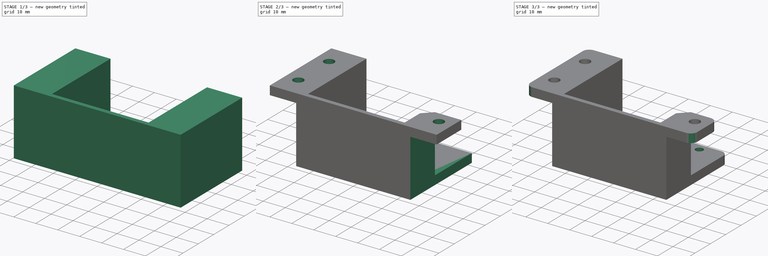
[diagram: build sequence overview — one tinted view per stage of 3, left to right]
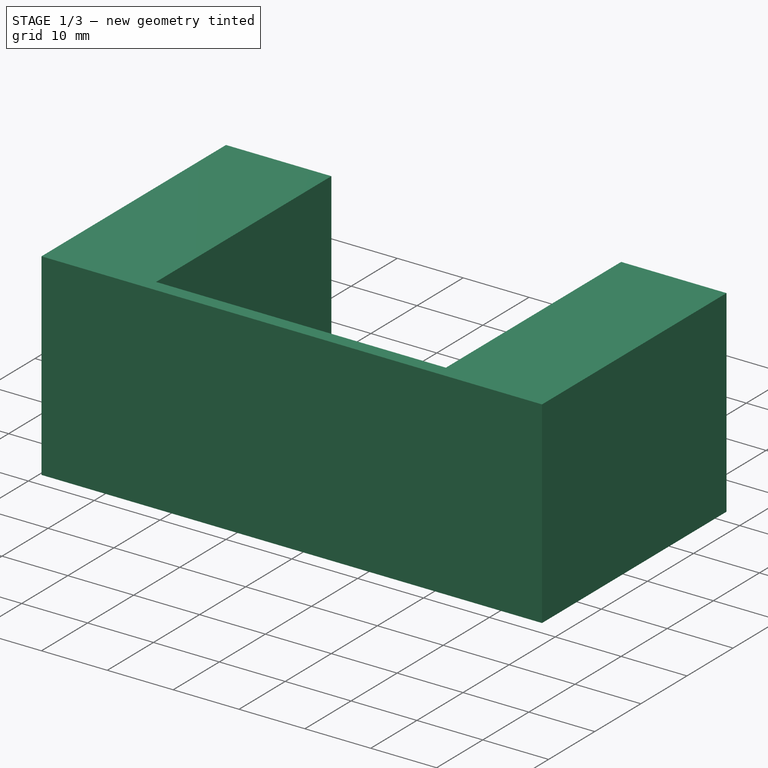
[diagram: stage 1 of 3 — iso view after this stage's code; geometry added in this stage tinted green]
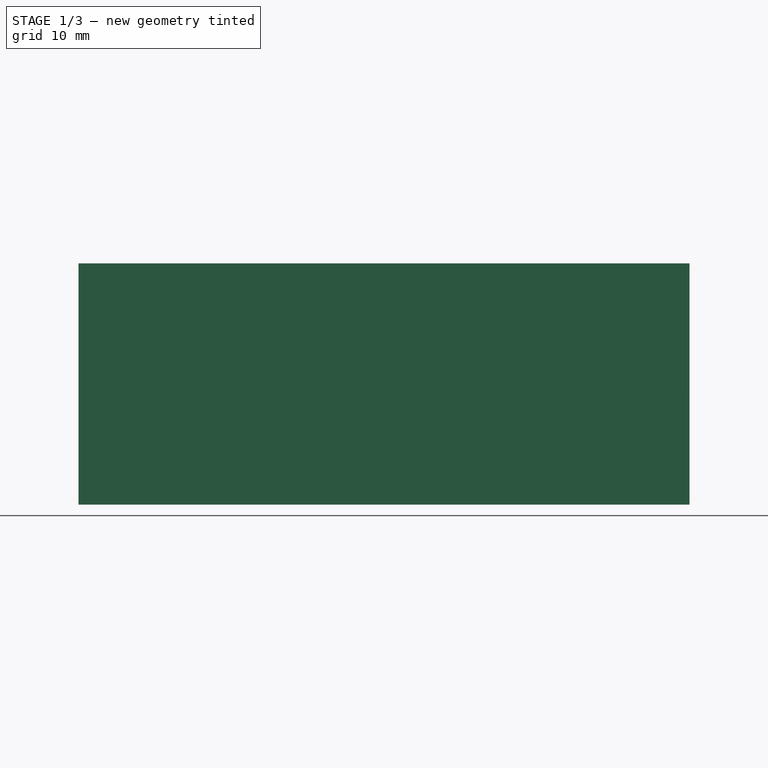
[diagram: stage 1 of 3 — front view after this stage's code; geometry added in this stage tinted green]
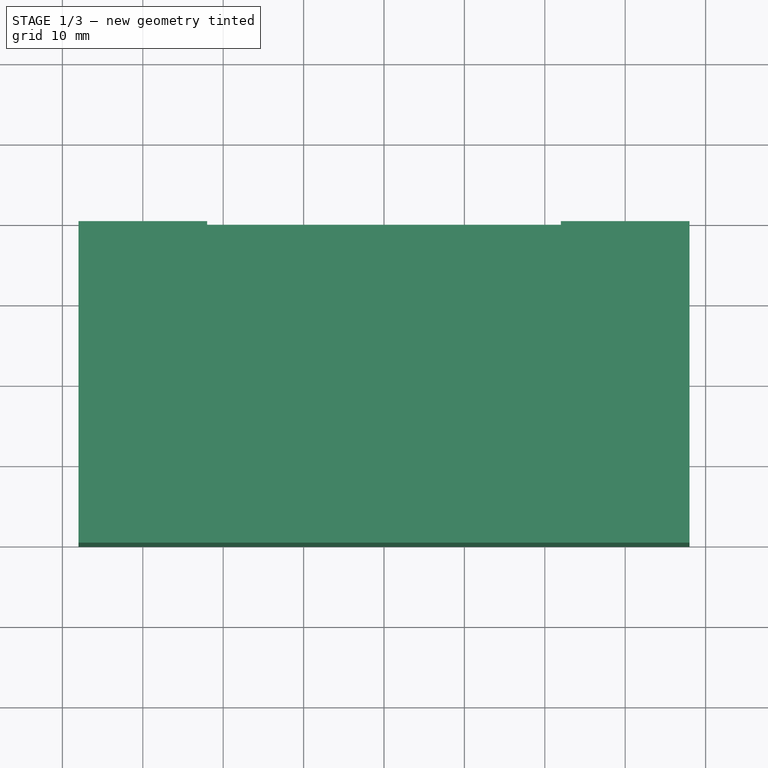
[diagram: stage 1 of 3 — top view after this stage's code; geometry added in this stage tinted green]
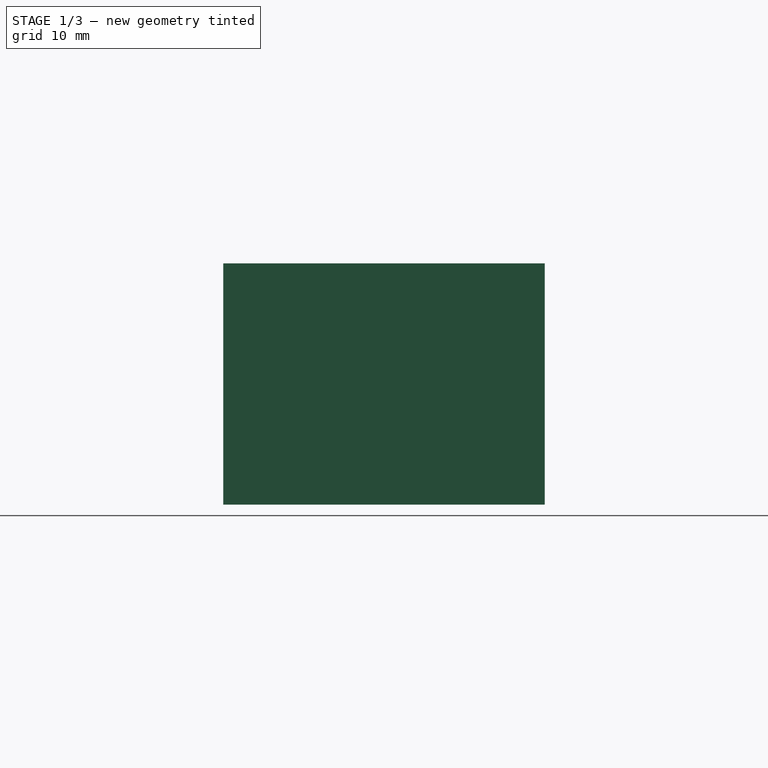
[diagram: stage 1 of 3 — right view after this stage's code; geometry added in this stage tinted green]
FCSTD DOCUMENT  (FreeCAD 0.16R6707 (Git))
Label: motor mount lead screw
License: All rights reserved
LicenseURL: http://en.wikipedia.org/wiki/All_rights_reserved
objects: Sketcher::SketchObject×6, PartDesign::Pocket×5, PartDesign::Pad×1, PartDesign::Fillet×1
note: 19 computed .brp shape members not serialized (recipe doc carries the construction recipe); baked Part::Feature solids carry a one-line shape summary decoded from their .brp

FEATURE [Sketcher::SketchObject] Sketch
  sketch-geometry (4):
    g0: LineSegment StartX=-38 StartY=40 StartZ=0 EndX=38 EndY=40 EndZ=0
    g1: LineSegment StartX=38 StartY=40 StartZ=0 EndX=38 EndY=0 EndZ=0
    g2: LineSegment StartX=38 StartY=0 StartZ=0 EndX=-38 EndY=0 EndZ=0
    g3: LineSegment StartX=-38 StartY=0 StartZ=0 EndX=-38 EndY=40 EndZ=0
  constraints (11):
    c: Coincident(g0,g1)
    c: Coincident(g1,g2)
    c: Coincident(g2,g3)
    c: Coincident(g3,g0)
    c: Horizontal(g0)
    c: Horizontal(g2)
    c: Vertical(g1)
    c: Vertical(g3)
    c: Symmetric(g0,g0,g-2)
    c: DistanceX(g0,g0) = 76
    c: DistanceY(g3,g3) = 40
FEATURE [PartDesign::Pad] Pad
  Length = 30
  Length2 = 100
  Sketch = -> Sketch
  Type = 0
FEATURE [Sketcher::SketchObject] Sketch001
  Placement = pos=(0,0,30) rot=(0,0,1;0rad)
  Support = -> Pad [Face6]
  sketch-geometry (4):
    g0: LineSegment StartX=-22 StartY=45.0787 StartZ=0 EndX=22 EndY=45.0787 EndZ=0
    g1: LineSegment StartX=22 StartY=45.0787 StartZ=0 EndX=22 EndY=2 EndZ=0
    g2: LineSegment StartX=22 StartY=2 StartZ=0 EndX=-22 EndY=2 EndZ=0
    g3: LineSegment StartX=-22 StartY=2 StartZ=0 EndX=-22 EndY=45.0787 EndZ=0
  constraints (10):
    c: Coincident(g0,g1)
    c: Coincident(g1,g2)
    c: Coincident(g2,g3)
    c: Coincident(g3,g0)
    c: Horizontal(g0)
    c: Horizontal(g2)
    c: Vertical(g1)
    c: Vertical(g3)
    c: Symmetric(g0,g0,g-2)
    c: DistanceX(g0,g0) = 44
FEATURE [PartDesign::Pocket] Pocket
  Length = 26
  Sketch = -> Sketch001
  Type = 0
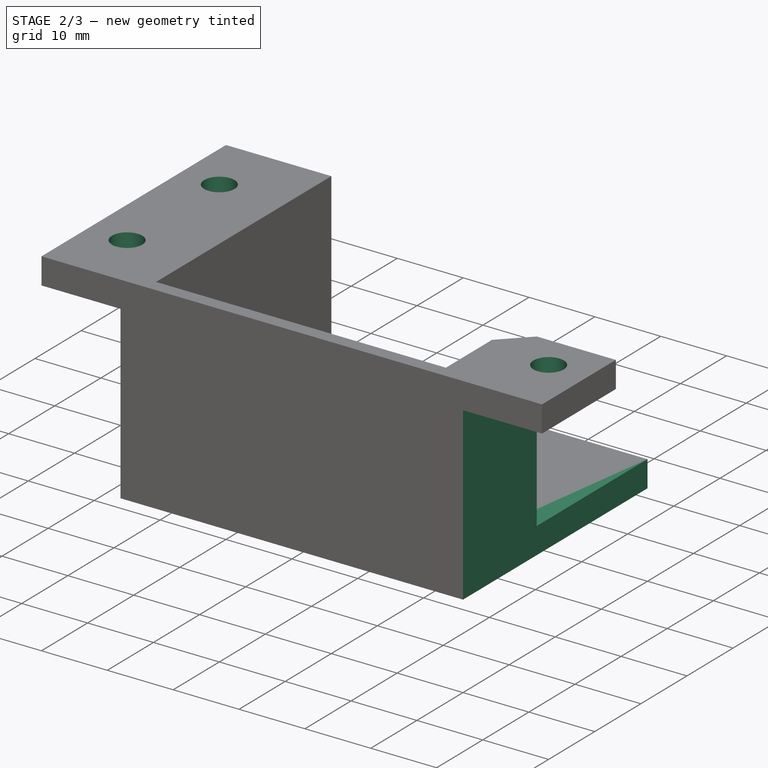
[diagram: stage 2 of 3 — iso view after this stage's code; geometry added in this stage tinted green]
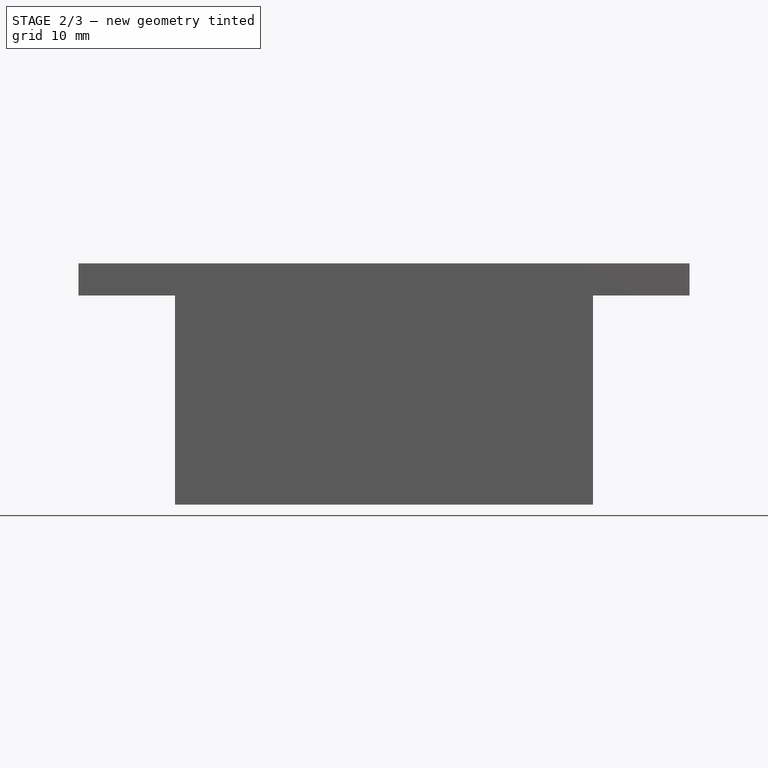
[diagram: stage 2 of 3 — front view after this stage's code; geometry added in this stage tinted green]
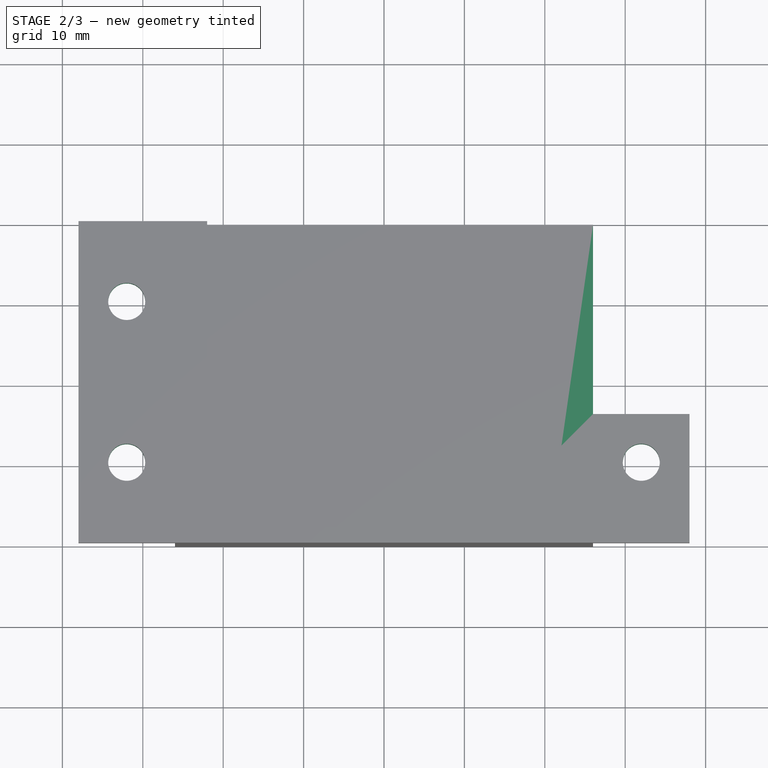
[diagram: stage 2 of 3 — top view after this stage's code; geometry added in this stage tinted green]
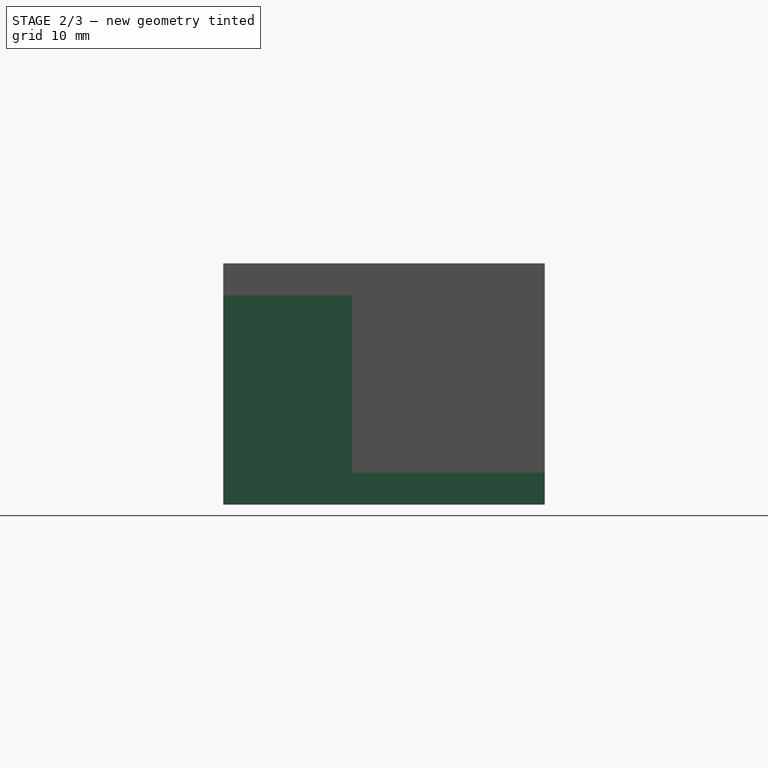
[diagram: stage 2 of 3 — right view after this stage's code; geometry added in this stage tinted green]
FEATURE [Sketcher::SketchObject] Sketch002
  Placement = pos=(0,0,30) rot=(0,0,1;0rad)
  Support = -> Pocket [Face4]
  sketch-geometry (3):
    g0: Circle CenterX=-32 CenterY=10 CenterZ=0 NormalX=0 NormalY=0 NormalZ=1 Radius=2.3
    g1: Circle CenterX=-32 CenterY=30 CenterZ=0 NormalX=0 NormalY=0 NormalZ=1 Radius=2.3
    g2: Circle CenterX=32 CenterY=10 CenterZ=0 NormalX=0 NormalY=0 NormalZ=1 Radius=2.3
  constraints (6):
    c: DistanceY(g-1,g0) = 10
    c: DistanceY(g0,g1) = 20
    c: DistanceY(g-1,g2) = 10
    c: Radius(g1) = 2.3
    c: Equal(g1,g0)
    c: Equal(g1,g2)
FEATURE [PartDesign::Pocket] Pocket001
  Length = 5
  Sketch = -> Sketch002
  Type = 1
FEATURE [Sketcher::SketchObject] Sketch003
  Placement = pos=(0,0,0) rot=(1,0,0;3.14159rad)
  Support = -> Pocket001 [Face2]
  sketch-geometry (8):
    g0: LineSegment StartX=-40 StartY=2.55474 StartZ=0 EndX=-26 EndY=2.55474 EndZ=0
    g1: LineSegment StartX=-26 StartY=2.55474 StartZ=0 EndX=-26 EndY=-42 EndZ=0
    g2: LineSegment StartX=-26 StartY=-42 StartZ=0 EndX=-40 EndY=-42 EndZ=0
    g3: LineSegment StartX=-40 StartY=-42 StartZ=0 EndX=-40 EndY=2.55474 EndZ=0
    g4: LineSegment StartX=26 StartY=2 StartZ=0 EndX=40 EndY=2 EndZ=0
    g5: LineSegment StartX=40 StartY=2 StartZ=0 EndX=40 EndY=-42 EndZ=0
    g6: LineSegment StartX=40 StartY=-42 StartZ=0 EndX=26 EndY=-42 EndZ=0
    g7: LineSegment StartX=26 StartY=-42 StartZ=0 EndX=26 EndY=2 EndZ=0
  constraints (16):
    c: Coincident(g0,g1)
    c: Coincident(g1,g2)
    c: Coincident(g2,g3)
    c: Coincident(g3,g0)
    c: Horizontal(g0)
    c: Horizontal(g2)
    c: Vertical(g1)
    c: Vertical(g3)
    c: Coincident(g4,g5)
    c: Coincident(g5,g6)
    c: Coincident(g6,g7)
    c: Coincident(g7,g4)
    c: Horizontal(g4)
    c: Horizontal(g6)
    c: Vertical(g5)
    c: Vertical(g7)
FEATURE [PartDesign::Pocket] Pocket002
  Length = 26
  Sketch = -> Sketch003
  Type = 0
FEATURE [Sketcher::SketchObject] Sketch004
  Placement = pos=(0,0,30) rot=(0,0,1;0rad)
  Support = -> Pocket002 [Face6]
  sketch-geometry (5):
    g0: LineSegment StartX=20 StartY=42 StartZ=0 EndX=40 EndY=42 EndZ=0
    g1: LineSegment StartX=40 StartY=42 StartZ=0 EndX=40 EndY=16 EndZ=0
    g2: LineSegment StartX=20 StartY=10 StartZ=0 EndX=20 EndY=42 EndZ=0
    g3: LineSegment StartX=40 StartY=16 StartZ=0 EndX=26 EndY=16 EndZ=0
    g4: LineSegment StartX=26 StartY=16 StartZ=0 EndX=20 EndY=10 EndZ=0
  constraints (9):
    c: Coincident(g0,g1)
    c: Coincident(g2,g0)
    c: Horizontal(g0)
    c: Vertical(g1)
    c: Vertical(g2)
    c: Coincident(g1,g3)
    c: Horizontal(g3)
    c: Coincident(g3,g4)
    c: Coincident(g4,g2)
FEATURE [PartDesign::Pocket] Pocket003
  Length = 26
  Sketch = -> Sketch004
  Type = 0
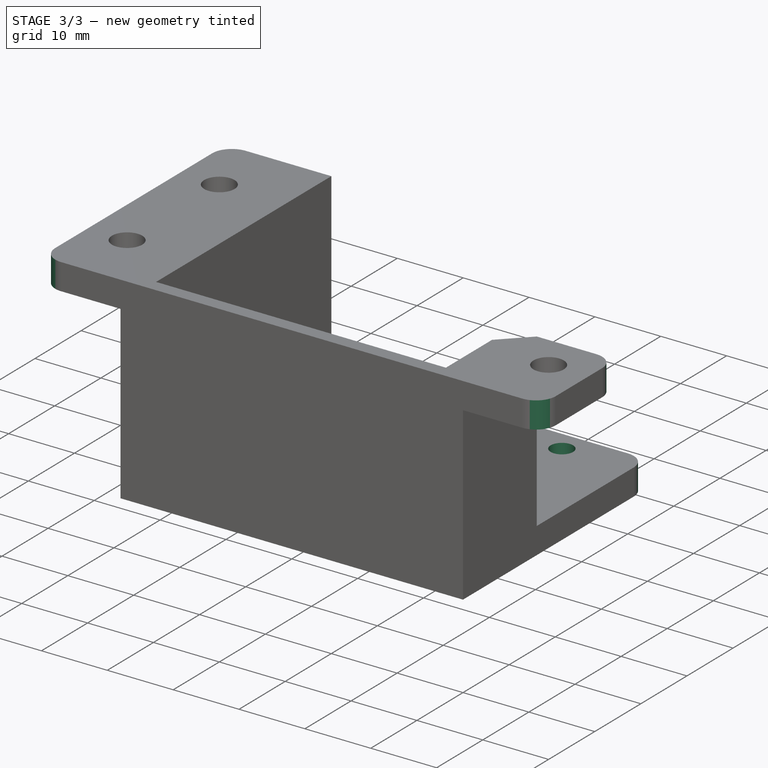
[diagram: stage 3 of 3 — iso view after this stage's code; geometry added in this stage tinted green]
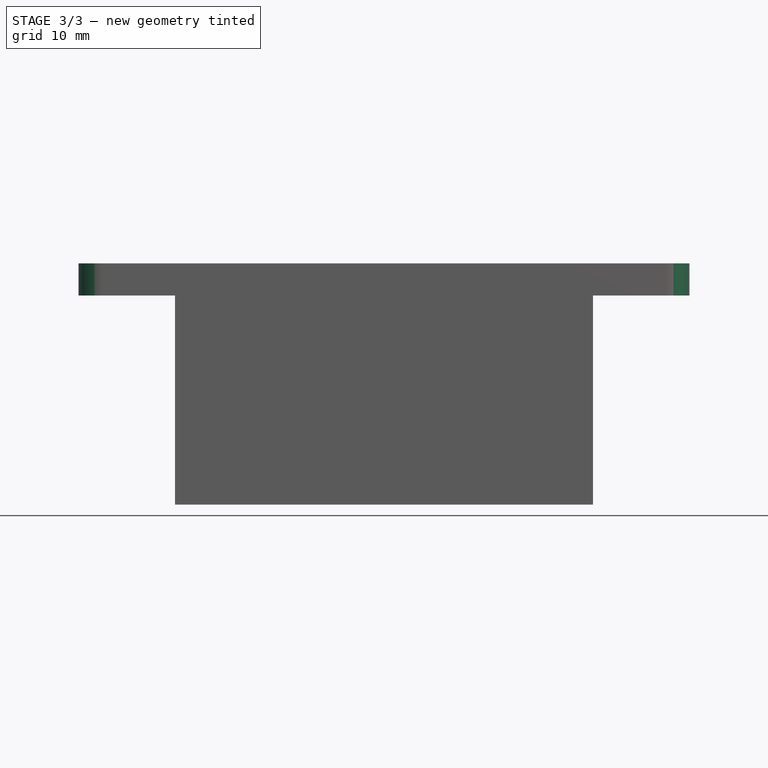
[diagram: stage 3 of 3 — front view after this stage's code; geometry added in this stage tinted green]
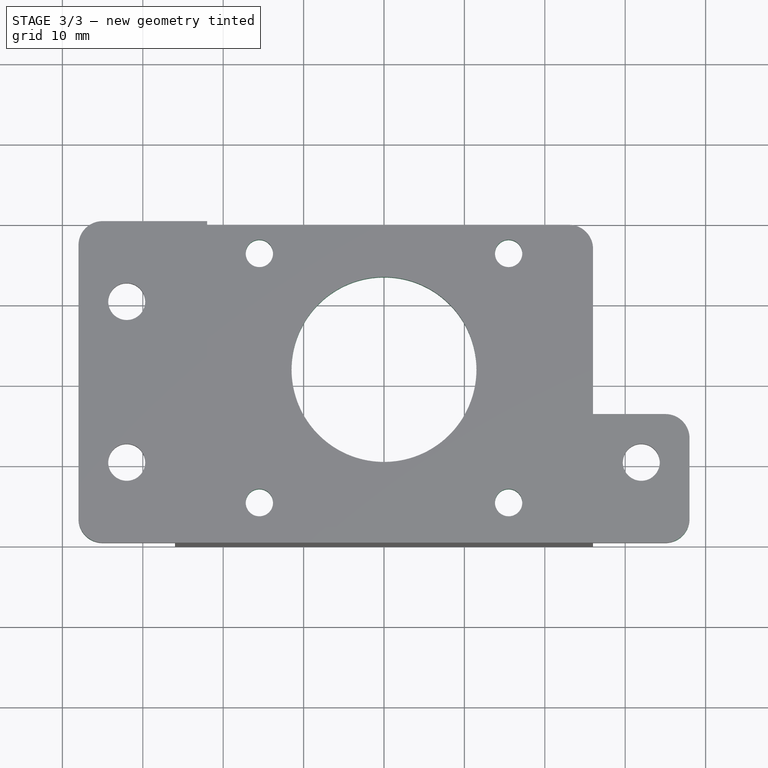
[diagram: stage 3 of 3 — top view after this stage's code; geometry added in this stage tinted green]
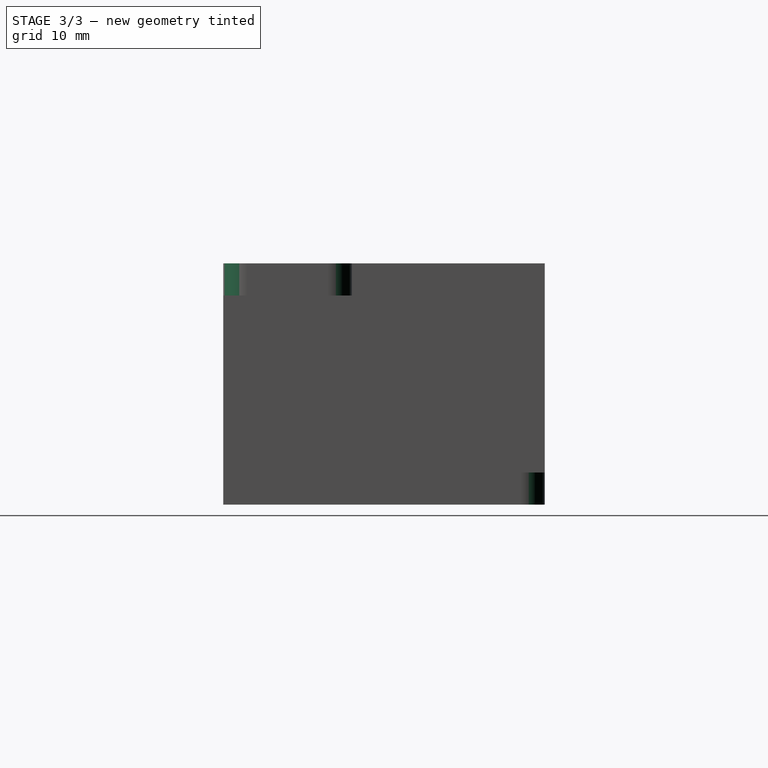
[diagram: stage 3 of 3 — right view after this stage's code; geometry added in this stage tinted green]
FEATURE [Sketcher::SketchObject] Sketch005
  Placement = pos=(0,0,0) rot=(1,0,0;3.14159rad)
  Support = -> Pocket003 [Face2]
  sketch-geometry (10):
    g0: Circle CenterX=0 CenterY=-22 CenterZ=0 NormalX=0 NormalY=0 NormalZ=1 Radius=11.5
    g1: LineSegment [constr] StartX=-15.5 StartY=-5.43748 StartZ=0 EndX=15.5 EndY=-5.43748 EndZ=0
    g2: LineSegment [constr] StartX=15.5 StartY=-5.43748 StartZ=0 EndX=15.5 EndY=-36.4375 EndZ=0
    g3: LineSegment [constr] StartX=15.5 StartY=-36.4375 StartZ=0 EndX=-15.5 EndY=-36.4375 EndZ=0
    g4: LineSegment [constr] StartX=-15.5 StartY=-36.4375 StartZ=0 EndX=-15.5 EndY=-5.43748 EndZ=0
    g5: LineSegment [constr] StartX=-22 StartY=-20.9375 StartZ=0 EndX=26 EndY=-20.9375 EndZ=0
    g6: Circle CenterX=-15.5 CenterY=-5.43748 CenterZ=0 NormalX=0 NormalY=0 NormalZ=1 Radius=1.7
    g7: Circle CenterX=15.5 CenterY=-5.43748 CenterZ=0 NormalX=0 NormalY=0 NormalZ=1 Radius=1.7
    g8: Circle CenterX=15.5 CenterY=-36.4375 CenterZ=0 NormalX=0 NormalY=0 NormalZ=1 Radius=1.7
    g9: Circle CenterX=-15.5 CenterY=-36.4375 CenterZ=0 NormalX=0 NormalY=0 NormalZ=1 Radius=1.7
  constraints (24):
    c: PointOnObject(g0,g-2)
    c: DistanceY(g0,g-1) = 22
    c: Radius(g0) = 11.5
    c: Coincident(g1,g2)
    c: Coincident(g2,g3)
    c: Coincident(g3,g4)
    c: Coincident(g4,g1)
    c: Horizontal(g1)
    c: Horizontal(g3)
    c: Vertical(g2)
    c: Vertical(g4)
    c: Horizontal(g5)
    c: Symmetric(g1,g3,g5)
    c: Symmetric(g1,g1,g-2)
    c: DistanceX(g1,g1) = 31
    c: DistanceY(g4,g4) = 31
    c: Coincident(g6,g1)
    c: Coincident(g7,g1)
    c: Coincident(g8,g2)
    c: Coincident(g9,g3)
    c: Radius(g6) = 1.7
    c: Equal(g6,g7)
    c: Equal(g6,g8)
    c: Equal(g6,g9)
FEATURE [PartDesign::Pocket] Pocket004
  Length = 5
  Sketch = -> Sketch005
  Type = 0
FEATURE [PartDesign::Fillet] Fillet
  Base = -> Pocket004 [Edge2,Edge62,Edge50,Edge6,Edge43]
  Radius = 3
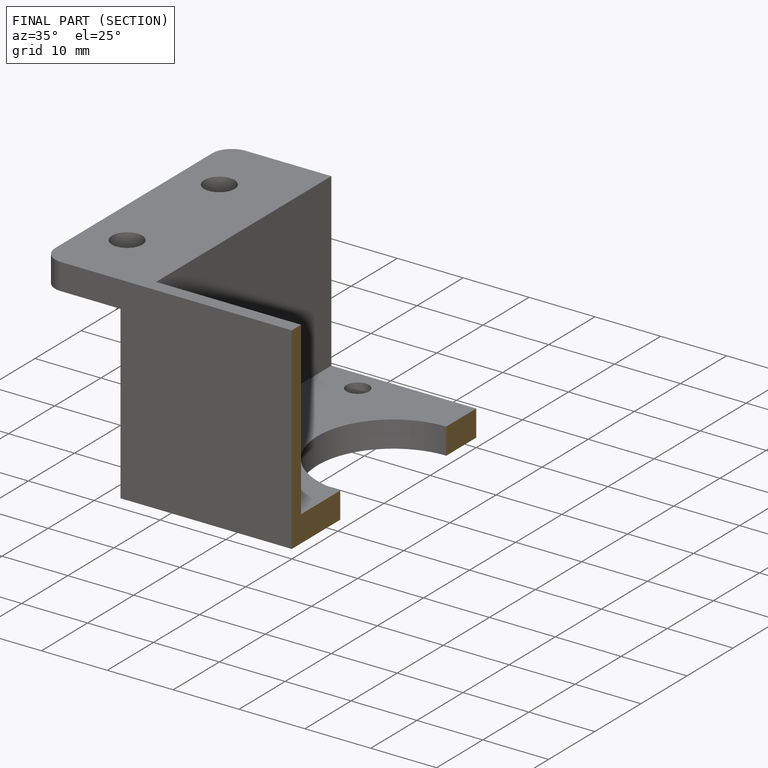
[diagram: finished part — half-section view (interior)]
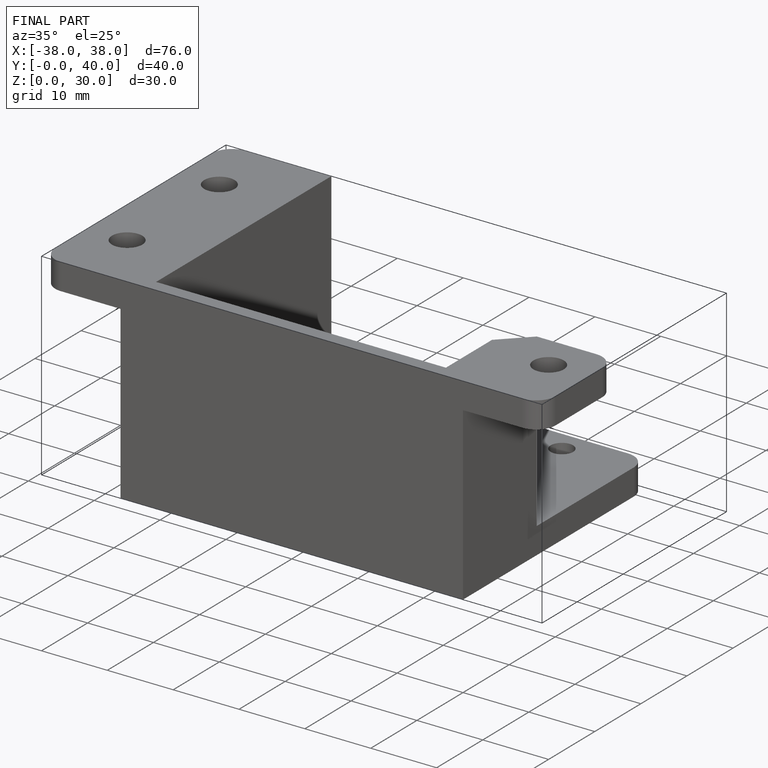
[diagram: finished part — iso view with bounding-box wireframe]
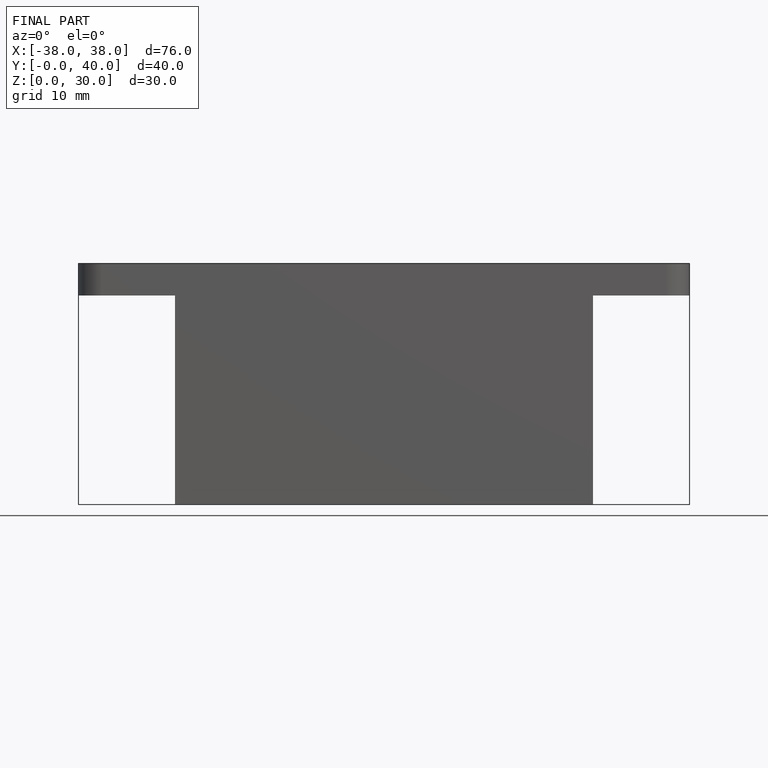
[diagram: finished part — front view with bounding-box wireframe]
